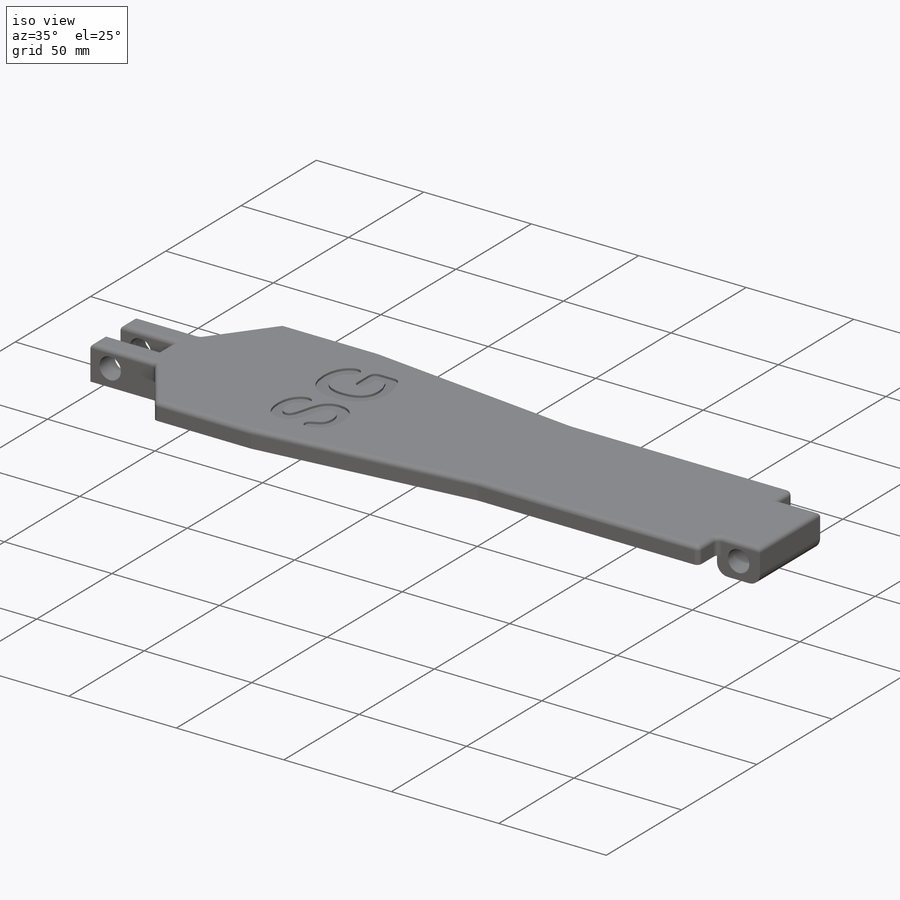
[diagram: iso view]
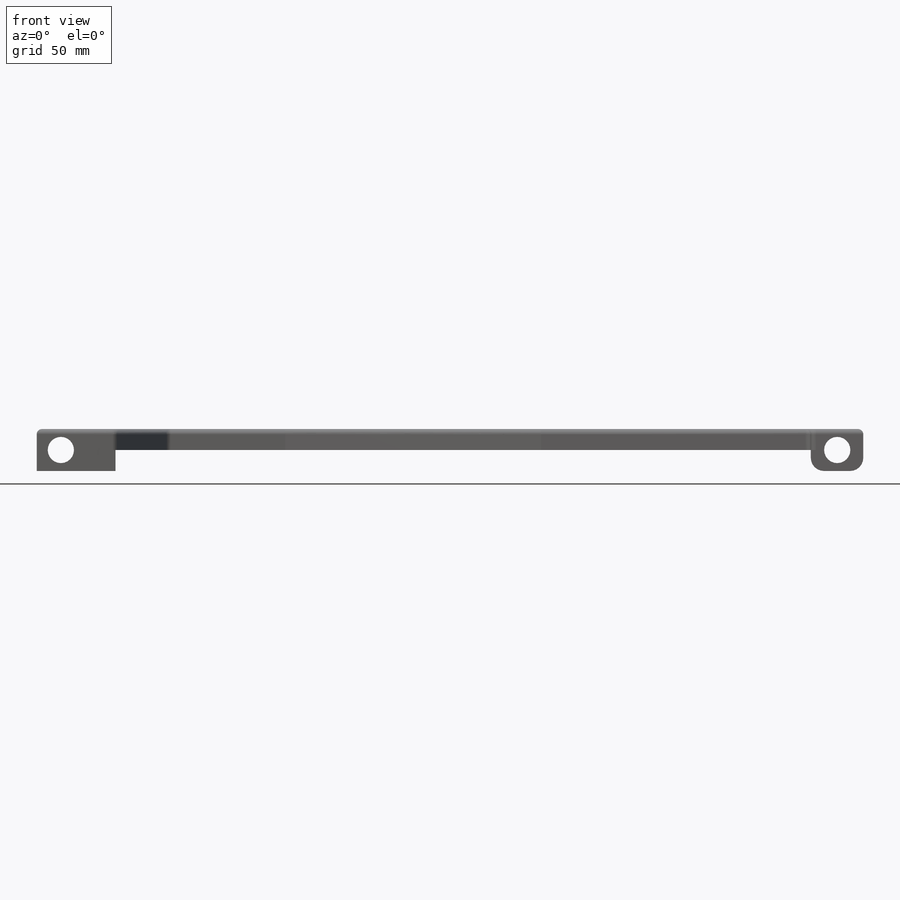
[diagram: front view]
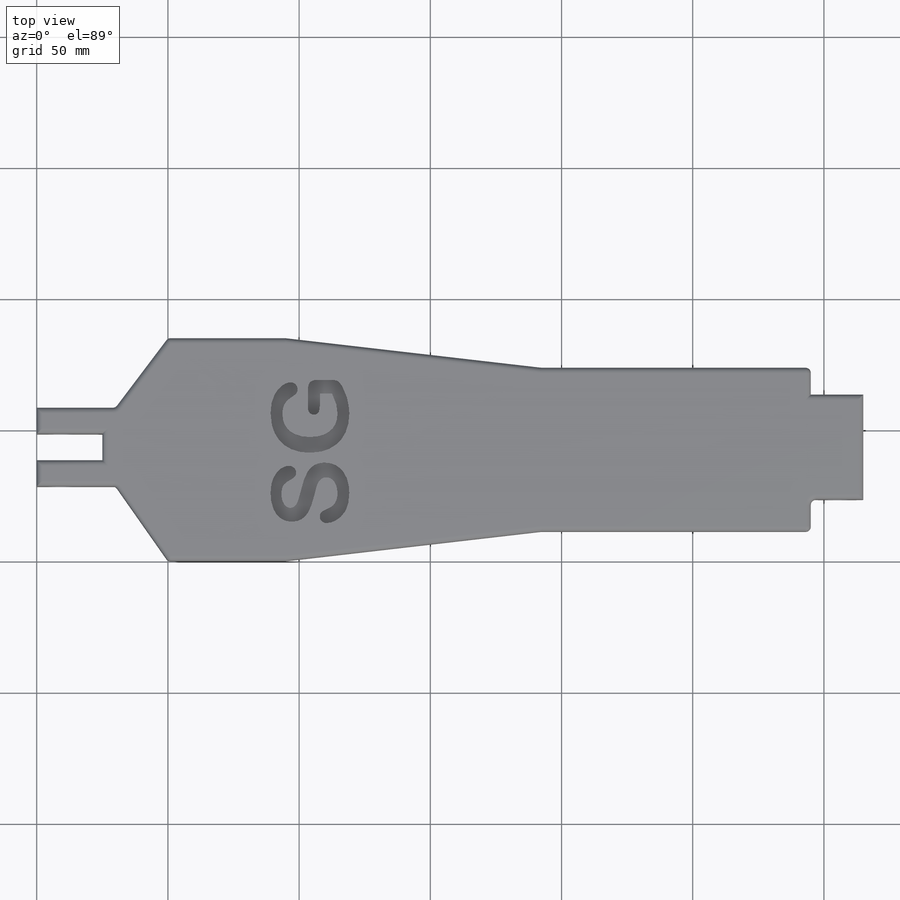
[diagram: top view]
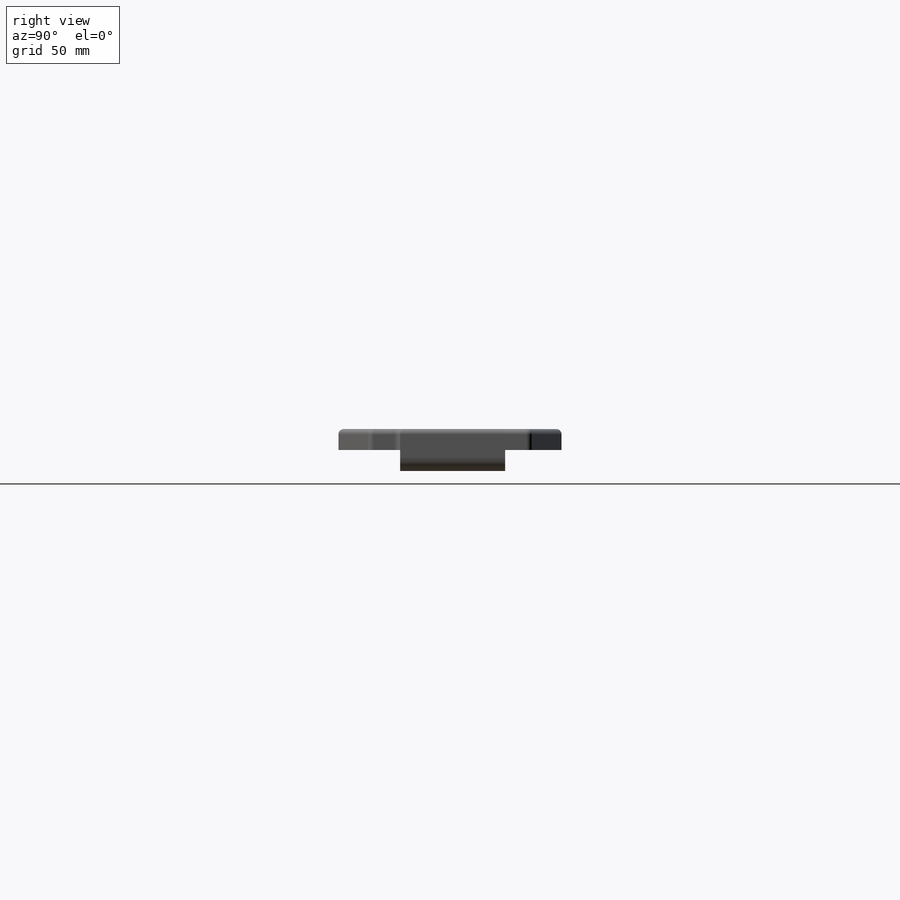
[diagram: right view]
SOLIDWORKS PART (.sldprt)
format: sldprt  version: not decoded by parser v0  size: 387,584 bytes
history: native  units: mm
features: sketch x4, extrude x2, cut_extrude x2, fillet x2, material x1 (+13 scaffold rows collapsed)
feature tree (24):
  scaffold x13  (default folders/planes/origin — collapsed)
  material  "Material <not specified>"
  sketch  "Sketch1"  dims[c1.D1=315.0mm c1.D2=85.0mm c1.D3=100.0mm c1.D4=100.0mm c1.D5=~0.038037mm c2.D3=20.0mm c2.D4=20.0mm c2.D5=20.0mm c2.D6=20.0mm c2.D7=100.0mm c2.D8=100.0mm c2.D9=5.0mm c2.D10=5.0mm c2.D11=30.0mm c2.D12=30.0mm c2.D13=50.0mm c2.D14=10.0mm c2.D15=10.0mm c2.D16=25.0mm]
  extrude  "Boss-Extrude1"  Depth=8mm
  sketch  "Sketch2"
  extrude  "Boss-Extrude2"  Depth=8mm
  sketch  "Sketch3"  dims[D1=10.0mm D2=10.0mm]
  cut_extrude  "Cut-Extrude1"  [1 undecoded]
  fillet  "Fillet1"  Radius=2mm
  fillet  "Fillet2"  Radius=5mm
  sketch  "Sketch4"
  cut_extrude  "Cut-Extrude2"  Depth=1mm
decode coverage: 7 of 10 modeling features carry decoded parameters
note: ~ marks probable driven/reference dimensions
note: 1 parameter value undecoded
note: suppression state not decoded; provenance and decode notes live in map.json
